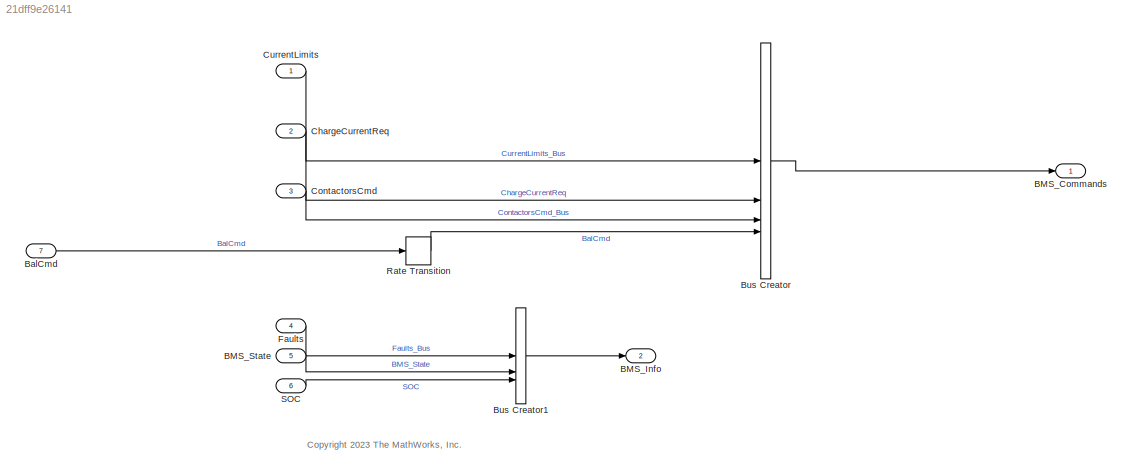
MODEL slx_21dff9e26141
KIND model
CONFIG AbsTol = auto
CONFIG EnableMultiTasking = off
CONFIG FixedStep = auto
CONFIG MaxStep = auto
CONFIG MinStep = auto
CONFIG RelTol = 1e-3
CONFIG SampleTimeConstraint = Unconstrained
CONFIG SolverName = FixedStepDiscrete
CONFIG StartTime = 0.0
CONFIG StopTime = 10000
WORKSPACE source: mxarray member
WORKSPACE Active_Scenario_Index: Simulink.Parameter (value not decoded)
WORKSPACE BattTempInit: Simulink.Parameter (value not decoded)
WORKSPACE Battery: object (value not decoded)
WORKSPACE CellType: Simulink.Parameter (value not decoded)
WORKSPACE Np_Module: Simulink.Parameter (value not decoded)
WORKSPACE Ns_Module: Simulink.Parameter (value not decoded)
WORKSPACE NumModules: Simulink.Parameter (value not decoded)
WORKSPACE OverCellVoltageLimit: Simulink.Parameter (value not decoded)
WORKSPACE TestCase: Simulink.Parameter (value not decoded)
WORKSPACE UnderCellVoltageLimit: Simulink.Parameter (value not decoded)
WORKSPACE ts: Simulink.Parameter (value not decoded)
BLOCK [Outport] BMS_Commands
  BusOutputAsStruct = on
  OutDataTypeStr = Bus: BMS_Cmd
  SampleTime = [0.10000000000000001,0]
BLOCK [Outport] BMS_Info
  OutDataTypeStr = Bus: BMS_Info
  Port = 2
  SampleTime = [0.10000000000000001,0]
BLOCK [Inport] BMS_State
  OutDataTypeStr = Enum: BMS_State_Enum
  Port = 5
  PortDimensions = 1
  SampleTime = [0.10000000000000001,0]
  SamplingMode = Sample based
  SignalType = real
BLOCK [Inport] BalCmd
  OutDataTypeStr = boolean
  Port = 7
  PortDimensions = 96
  SampleTime = [5,0]
  SamplingMode = Sample based
  SignalType = real
BLOCK [BusCreator] Bus Creator
  DisplayOption = bar
  InheritFromInputs = on
  Inputs = 4
  OutDataTypeStr = Bus: BMS_Cmd
BLOCK [BusCreator] Bus Creator1
  DisplayOption = bar
  InheritFromInputs = on
  Inputs = 3
  OutDataTypeStr = Bus: BMS_Info
BLOCK [Inport] ChargeCurrentReq
  OutDataTypeStr = single
  Port = 2
  PortDimensions = 1
  SampleTime = [0.10000000000000001,0]
  SamplingMode = Sample based
  SignalType = real
BLOCK [Inport] ContactorsCmd
  BusOutputAsStruct = on
  OutDataTypeStr = Bus: Contactors_Cmd
  Port = 3
  SampleTime = [0.10000000000000001,0]
BLOCK [Inport] CurrentLimits
  BusOutputAsStruct = on
  OutDataTypeStr = Bus: CurrentLimits
  SampleTime = [0.10000000000000001,0]
BLOCK [Inport] Faults
  BusOutputAsStruct = on
  OutDataTypeStr = Bus: Faults
  Port = 4
  PortDimensions = 1
  SampleTime = [0.10000000000000001,0]
BLOCK [RateTransition] Rate Transition
  Deterministic = off
  Integrity = off
BLOCK [Inport] SOC
  OutDataTypeStr = Bus: SOC_Est
  Port = 6
  SampleTime = [0.10000000000000001,0]
  SamplingMode = Sample based
  SignalType = real
ANNOTATION (root): <copyright redacted>
LINE BMS_State:1 -> Bus Creator1:2
LINE BalCmd:1 -> Rate Transition:1
LINE Bus Creator1:1 -> BMS_Info:1
LINE Bus Creator:1 -> BMS_Commands:1
LINE ChargeCurrentReq:1 -> Bus Creator:2
LINE ContactorsCmd:1 -> Bus Creator:3
LINE CurrentLimits:1 -> Bus Creator:1
LINE Faults:1 -> Bus Creator1:1
LINE Rate Transition:1 -> Bus Creator:4
LINE SOC:1 -> Bus Creator1:3
